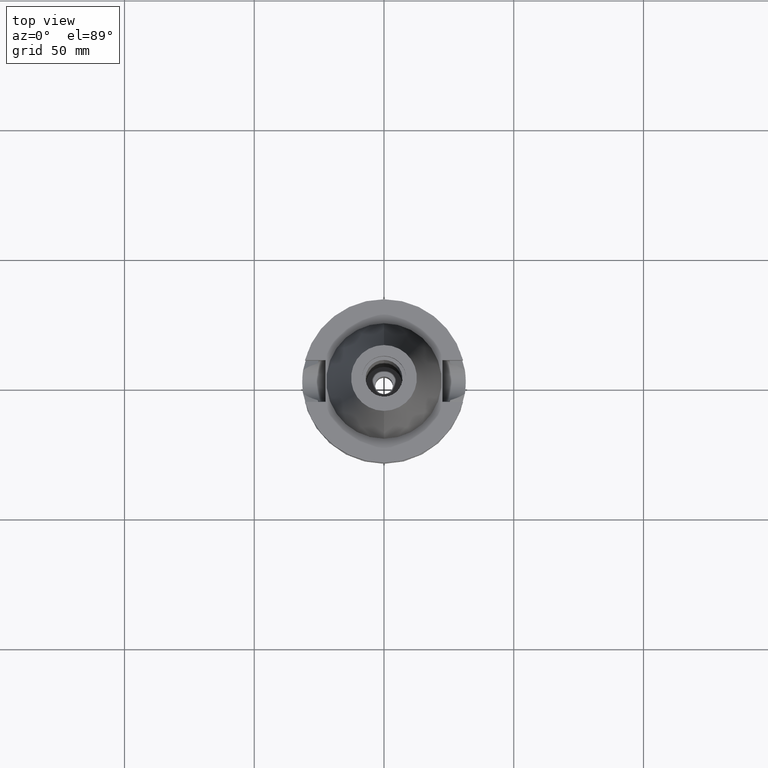
[diagram: clean part render]
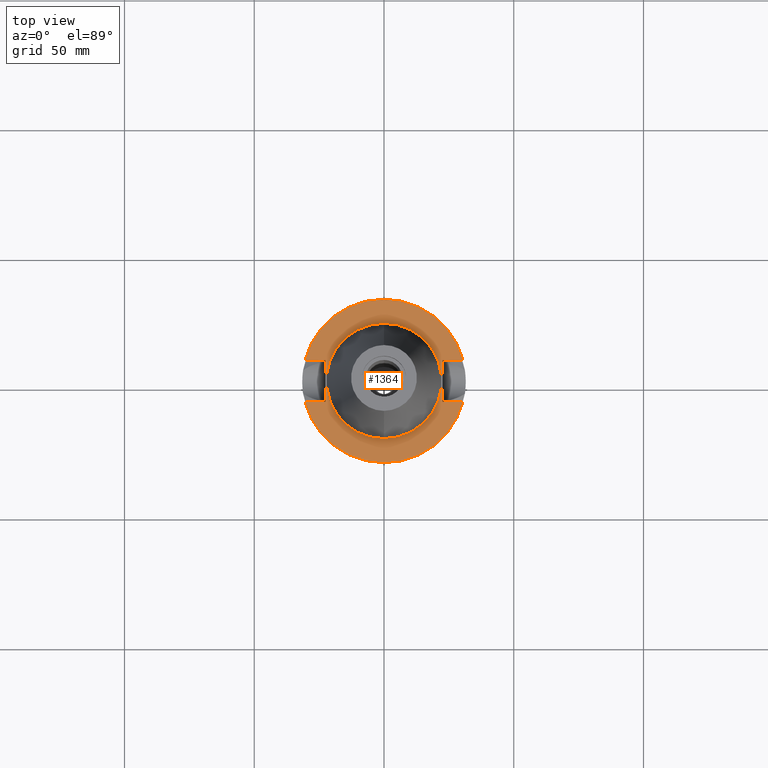
[diagram: same view with one face highlighted and labeled with its STEP entity id]
A machine part, top view. The second image highlights one B-rep face of the part: STEP entity #1364.
In plain terms, the highlighted planar face has unit normal (0, 0, 1).
Its self-contained STEP definition (entity closure, byte-faithful):
#94=DIRECTION('',(0.E0,1.E0,0.E0));
#95=VECTOR('',#94,1.61E1);
#96=CARTESIAN_POINT('',(-2.25E1,-8.05E0,-1.E0));
#97=LINE('',#96,#95);
#101=DIRECTION('',(-1.E0,-3.550916904668E-14,1.310656829200E-14));
#102=VECTOR('',#101,7.954022722788E0);
#103=CARTESIAN_POINT('',(-2.25E1,8.05E0,-1.E0));
#104=LINE('',#103,#102);
#108=CARTESIAN_POINT('',(0.E0,0.E0,-9.999999999997E-1));
#109=DIRECTION('',(0.E0,0.E0,-1.E0));
#110=DIRECTION('',(-9.667943721520E-1,2.555555555556E-1,0.E0));
#111=AXIS2_PLACEMENT_3D('',#108,#109,#110);
#116=CARTESIAN_POINT('',(0.E0,0.E0,-9.999999999997E-1));
#117=DIRECTION('',(0.E0,0.E0,-1.E0));
#118=DIRECTION('',(0.E0,1.E0,0.E0));
#119=AXIS2_PLACEMENT_3D('',#116,#117,#118);
#124=DIRECTION('',(0.E0,-1.E0,0.E0));
#125=VECTOR('',#124,1.61E1);
#126=CARTESIAN_POINT('',(2.25E1,8.05E0,-1.E0));
#127=LINE('',#126,#125);
#131=DIRECTION('',(1.E0,3.483918472505E-14,1.310656829200E-14));
#132=VECTOR('',#131,7.954022722788E0);
#133=CARTESIAN_POINT('',(2.25E1,-8.05E0,-1.E0));
#134=LINE('',#133,#132);
#138=CARTESIAN_POINT('',(0.E0,0.E0,-9.999999999997E-1));
#139=DIRECTION('',(0.E0,0.E0,-1.E0));
#140=DIRECTION('',(9.667943721520E-1,-2.555555555556E-1,0.E0));
#141=AXIS2_PLACEMENT_3D('',#138,#139,#140);
#146=CARTESIAN_POINT('',(0.E0,0.E0,-9.999999999997E-1));
#147=DIRECTION('',(0.E0,0.E0,-1.E0));
#148=DIRECTION('',(0.E0,-1.E0,0.E0));
#149=AXIS2_PLACEMENT_3D('',#146,#147,#148);
#154=CARTESIAN_POINT('',(0.E0,0.E0,-1.E0));
#155=DIRECTION('',(0.E0,0.E0,1.E0));
#156=DIRECTION('',(0.E0,-1.E0,0.E0));
#157=AXIS2_PLACEMENT_3D('',#154,#155,#156);
#162=CARTESIAN_POINT('',(0.E0,0.E0,-1.E0));
#163=DIRECTION('',(0.E0,0.E0,1.E0));
#164=DIRECTION('',(0.E0,1.E0,0.E0));
#165=AXIS2_PLACEMENT_3D('',#162,#163,#164);
#200=DIRECTION('',(-1.E0,3.550916904668E-14,1.310656829200E-14));
#201=VECTOR('',#200,7.954022722788E0);
#202=CARTESIAN_POINT('',(-2.25E1,-8.05E0,-1.E0));
#203=LINE('',#202,#201);
#337=DIRECTION('',(1.E0,-3.617915336832E-14,1.310656829200E-14));
#338=VECTOR('',#337,7.954022722788E0);
#339=CARTESIAN_POINT('',(2.25E1,8.05E0,-1.E0));
#340=LINE('',#339,#338);
#1100=CARTESIAN_POINT('',(0.E0,2.2225E1,-9.999999999999E-1));
#1101=VERTEX_POINT('',#1100);
#1102=CARTESIAN_POINT('',(0.E0,-2.2225E1,-1.E0));
#1103=VERTEX_POINT('',#1102);
#1104=CARTESIAN_POINT('',(-2.25E1,-8.05E0,-1.E0));
#1105=CARTESIAN_POINT('',(-2.25E1,8.05E0,-1.E0));
#1106=VERTEX_POINT('',#1104);
#1107=VERTEX_POINT('',#1105);
#1108=CARTESIAN_POINT('',(-3.045402272279E1,8.05E0,-9.999999999999E-1));
#1109=VERTEX_POINT('',#1108);
#1110=CARTESIAN_POINT('',(-3.046064939756E-14,3.15E1,-9.999999999997E-1));
#1111=CARTESIAN_POINT('',(3.045402272279E1,8.05E0,-9.999999999997E-1));
#1112=VERTEX_POINT('',#1110);
#1113=VERTEX_POINT('',#1111);
#1114=CARTESIAN_POINT('',(2.25E1,8.05E0,-1.E0));
#1115=VERTEX_POINT('',#1114);
#1116=CARTESIAN_POINT('',(2.25E1,-8.05E0,-1.E0));
#1117=VERTEX_POINT('',#1116);
#1118=CARTESIAN_POINT('',(3.045402272279E1,-8.05E0,-9.999999999999E-1));
#1119=VERTEX_POINT('',#1118);
#1120=CARTESIAN_POINT('',(3.046064939756E-14,-3.15E1,-9.999999999997E-1));
#1121=CARTESIAN_POINT('',(-3.045402272279E1,-8.05E0,-9.999999999997E-1));
#1122=VERTEX_POINT('',#1120);
#1123=VERTEX_POINT('',#1121);
#1333=CARTESIAN_POINT('',(0.E0,0.E0,-1.E0));
#1334=DIRECTION('',(0.E0,0.E0,1.E0));
#1335=DIRECTION('',(0.E0,1.E0,0.E0));
#1336=AXIS2_PLACEMENT_3D('',#1333,#1334,#1335);
#1337=PLANE('',#1336);
#1339=ORIENTED_EDGE('',*,*,#1338,.T.);
#1341=ORIENTED_EDGE('',*,*,#1340,.T.);
#1343=ORIENTED_EDGE('',*,*,#1342,.T.);
#1345=ORIENTED_EDGE('',*,*,#1344,.T.);
#1347=ORIENTED_EDGE('',*,*,#1346,.F.);
#1349=ORIENTED_EDGE('',*,*,#1348,.T.);
#1351=ORIENTED_EDGE('',*,*,#1350,.T.);
#1353=ORIENTED_EDGE('',*,*,#1352,.T.);
#1355=ORIENTED_EDGE('',*,*,#1354,.T.);
#1357=ORIENTED_EDGE('',*,*,#1356,.F.);
#1358=EDGE_LOOP('',(#1339,#1341,#1343,#1345,#1347,#1349,#1351,#1353,#1355,
#1357));
#1359=FACE_OUTER_BOUND('',#1358,.F.);
#1360=ORIENTED_EDGE('',*,*,#1312,.T.);
#1361=ORIENTED_EDGE('',*,*,#1328,.T.);
#1362=EDGE_LOOP('',(#1360,#1361));
#1363=FACE_BOUND('',#1362,.F.);
#112=CIRCLE('',#111,3.15E1);
#120=CIRCLE('',#119,3.15E1);
#142=CIRCLE('',#141,3.15E1);
#150=CIRCLE('',#149,3.15E1);
#158=CIRCLE('',#157,2.2225E1);
#166=CIRCLE('',#165,2.2225E1);
#1312=EDGE_CURVE('',#1103,#1101,#158,.T.);
#1328=EDGE_CURVE('',#1101,#1103,#166,.T.);
#1338=EDGE_CURVE('',#1106,#1107,#97,.T.);
#1340=EDGE_CURVE('',#1107,#1109,#104,.T.);
#1342=EDGE_CURVE('',#1109,#1112,#112,.T.);
#1344=EDGE_CURVE('',#1112,#1113,#120,.T.);
#1346=EDGE_CURVE('',#1115,#1113,#340,.T.);
#1348=EDGE_CURVE('',#1115,#1117,#127,.T.);
#1350=EDGE_CURVE('',#1117,#1119,#134,.T.);
#1352=EDGE_CURVE('',#1119,#1122,#142,.T.);
#1354=EDGE_CURVE('',#1122,#1123,#150,.T.);
#1356=EDGE_CURVE('',#1106,#1123,#203,.T.);
#1364=ADVANCED_FACE('',(#1359,#1363),#1337,.T.);